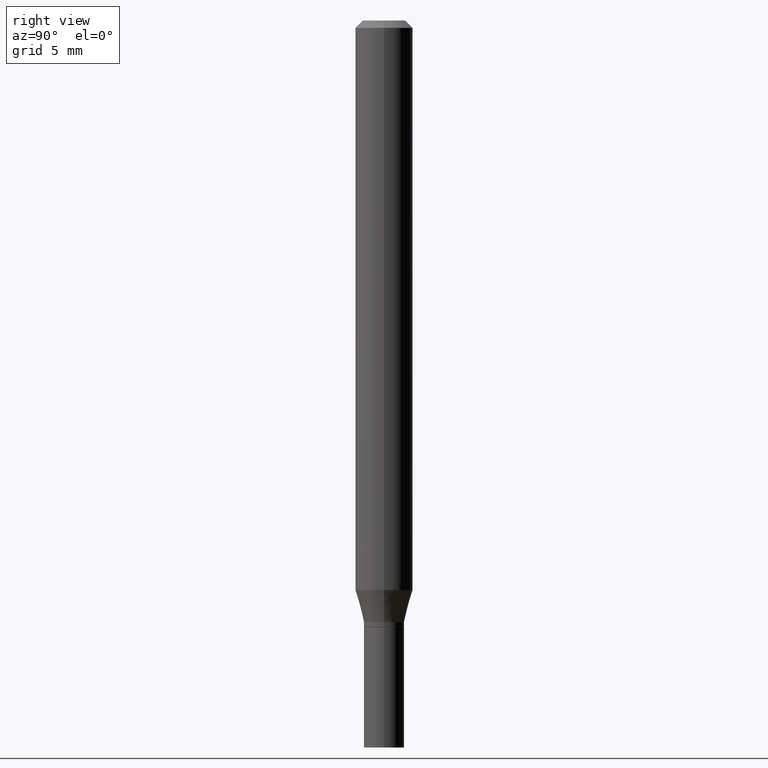
[diagram: clean part render]
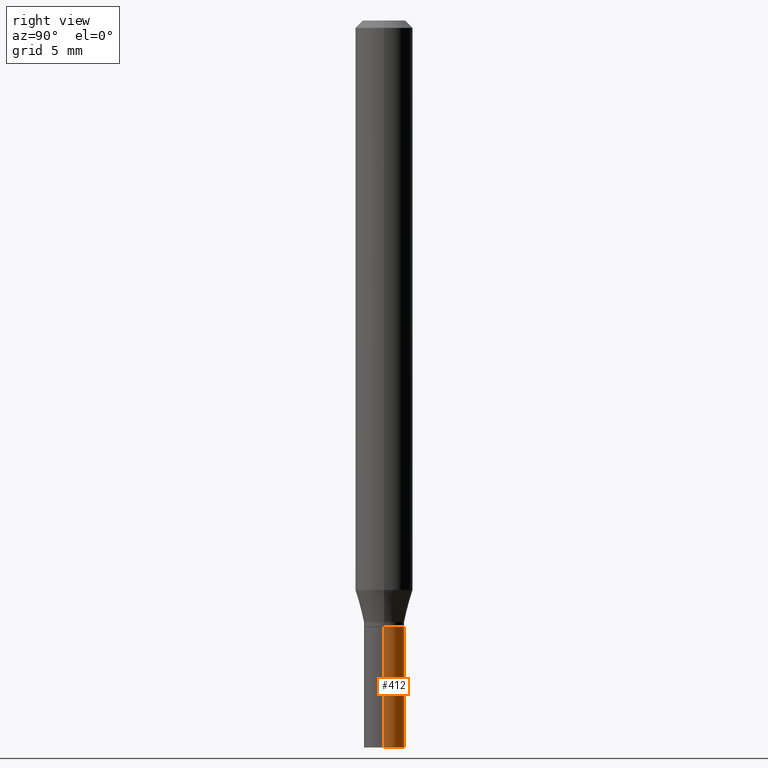
[diagram: same view with one face highlighted and labeled with its STEP entity id]
A machine part, right view. The second image highlights one B-rep face of the part: STEP entity #412.
In plain terms, the highlighted cylindrical surface (edge-blend (fillet) strip) has radius 1.0503 mm, axis along (-0, 0, 1).
Its self-contained STEP definition (entity closure, byte-faithful):
#17 = DIRECTION ( 'NONE',  ( -2.445468806185136877E-29, 3.491481338843145188E-15, 1.000000000000000000 ) ) ;
#21 = AXIS2_PLACEMENT_3D ( 'NONE', #123, #159, #303 ) ;
#23 = DIRECTION ( 'NONE',  ( -2.445468806185136877E-29, 3.491481338843145188E-15, 1.000000000000000000 ) ) ;
#25 = EDGE_CURVE ( 'NONE', #162, #201, #293, .T. ) ;
#96 = FACE_OUTER_BOUND ( 'NONE', #424, .T. ) ;
#104 = DIRECTION ( 'NONE',  ( 1.000000000000000000, -6.982962677686273021E-15, 0.000000000000000000 ) ) ;
#111 = CARTESIAN_POINT ( 'NONE',  ( -0.04134999999999999787, -4.496852123789878797E-15, -1.496099999999999985 ) ) ;
#123 = CARTESIAN_POINT ( 'NONE',  ( 3.052189616999668885E-29, -4.357717859010129969E-15, -1.248099999999999987 ) ) ;
#128 = CARTESIAN_POINT ( 'NONE',  ( -0.04134999999999999787, -4.496852123789878797E-15, -1.248099999999999987 ) ) ;
#131 = VECTOR ( 'NONE', #17, 39.37007874015748143 ) ;
#137 = DIRECTION ( 'NONE',  ( -2.445468806185136597E-29, 3.491481338843145583E-15, 1.000000000000000000 ) ) ;
#159 = DIRECTION ( 'NONE',  ( -2.445468806185136597E-29, 3.491481338843145583E-15, 1.000000000000000000 ) ) ;
#162 = VERTEX_POINT ( 'NONE', #261 ) ;
#166 = AXIS2_PLACEMENT_3D ( 'NONE', #277, #137, #346 ) ;
#201 = VERTEX_POINT ( 'NONE', #111 ) ;
#239 = VERTEX_POINT ( 'NONE', #128 ) ;
#249 = ORIENTED_EDGE ( 'NONE', *, *, #351, .T. ) ;
#253 = DIRECTION ( 'NONE',  ( -2.445468806185136597E-29, 3.491481338843145583E-15, 1.000000000000000000 ) ) ;
#261 = CARTESIAN_POINT ( 'NONE',  ( 0.04134999999999999787, -5.512350737765556605E-15, -1.496099999999999985 ) ) ;
#265 = ORIENTED_EDGE ( 'NONE', *, *, #322, .F. ) ;
#272 = CIRCLE ( 'NONE', #21, 0.04134999999999999787 ) ;
#273 = CARTESIAN_POINT ( 'NONE',  ( 0.04134999999999999787, -4.646463365732457703E-15, -1.248099999999999987 ) ) ;
#277 = CARTESIAN_POINT ( 'NONE',  ( 0.000000000000000000, 0.000000000000000000, 0.000000000000000000 ) ) ;
#287 = ORIENTED_EDGE ( 'NONE', *, *, #25, .T. ) ;
#293 = CIRCLE ( 'NONE', #390, 0.04134999999999999787 ) ;
#294 = VECTOR ( 'NONE', #23, 39.37007874015748143 ) ;
#303 = DIRECTION ( 'NONE',  ( 1.000000000000000000, -6.982962677686273021E-15, 0.000000000000000000 ) ) ;
#306 = ORIENTED_EDGE ( 'NONE', *, *, #447, .F. ) ;
#318 = CARTESIAN_POINT ( 'NONE',  ( 3.658665880933582389E-29, -5.223605231043229660E-15, -1.496099999999999985 ) ) ;
#322 = EDGE_CURVE ( 'NONE', #374, #239, #272, .T. ) ;
#340 = LINE ( 'NONE', #404, #131 ) ;
#346 = DIRECTION ( 'NONE',  ( 1.000000000000000000, -6.982962677686267499E-15, 4.876176775795936353E-29 ) ) ;
#348 = CARTESIAN_POINT ( 'NONE',  ( 0.04134999999999999787, -2.887455067223271427E-16, 2.016299096791619635E-30 ) ) ;
#351 = EDGE_CURVE ( 'NONE', #201, #239, #340, .T. ) ;
#374 = VERTEX_POINT ( 'NONE', #273 ) ;
#390 = AXIS2_PLACEMENT_3D ( 'NONE', #318, #253, #104 ) ;
#404 = CARTESIAN_POINT ( 'NONE',  ( -0.04134999999999999787, 2.938094212368014117E-16, -2.033979659820403452E-30 ) ) ;
#412 = ADVANCED_FACE ( 'NONE', ( #96 ), #416, .T. ) ;
#416 = CYLINDRICAL_SURFACE ( 'NONE', #166, 0.04134999999999999787 ) ;
#424 = EDGE_LOOP ( 'NONE', ( #287, #249, #265, #306 ) ) ;
#447 = EDGE_CURVE ( 'NONE', #162, #374, #457, .T. ) ;
#457 = LINE ( 'NONE', #348, #294 ) ;